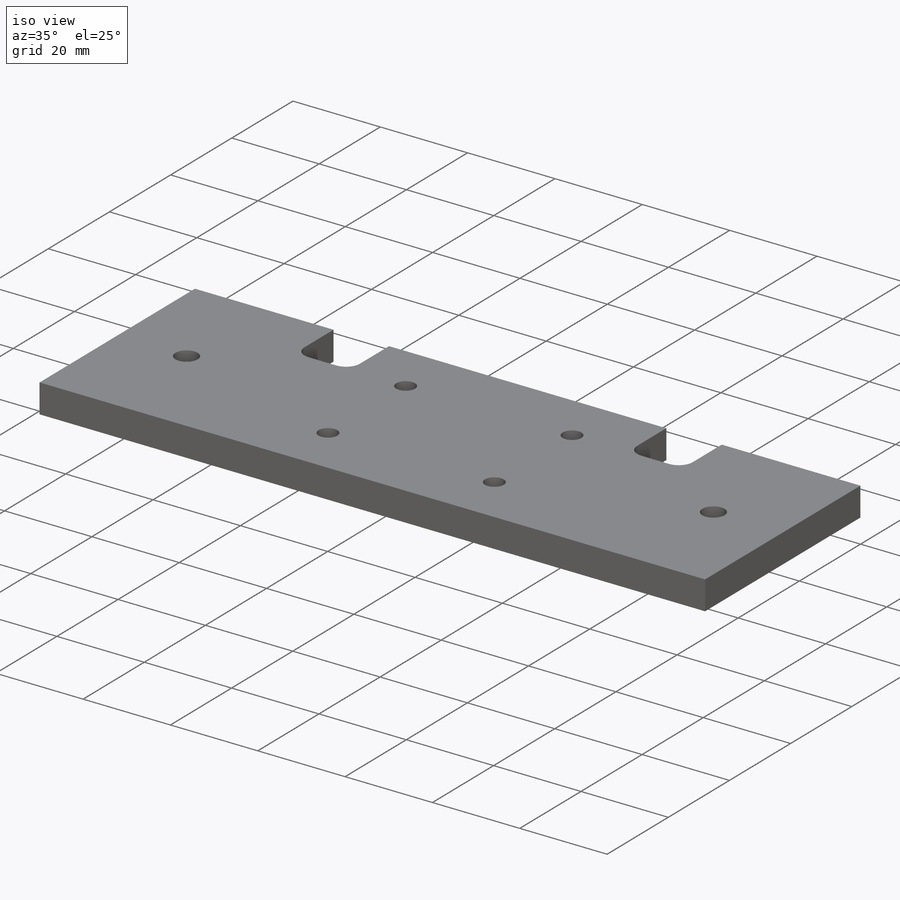
[diagram: iso view]
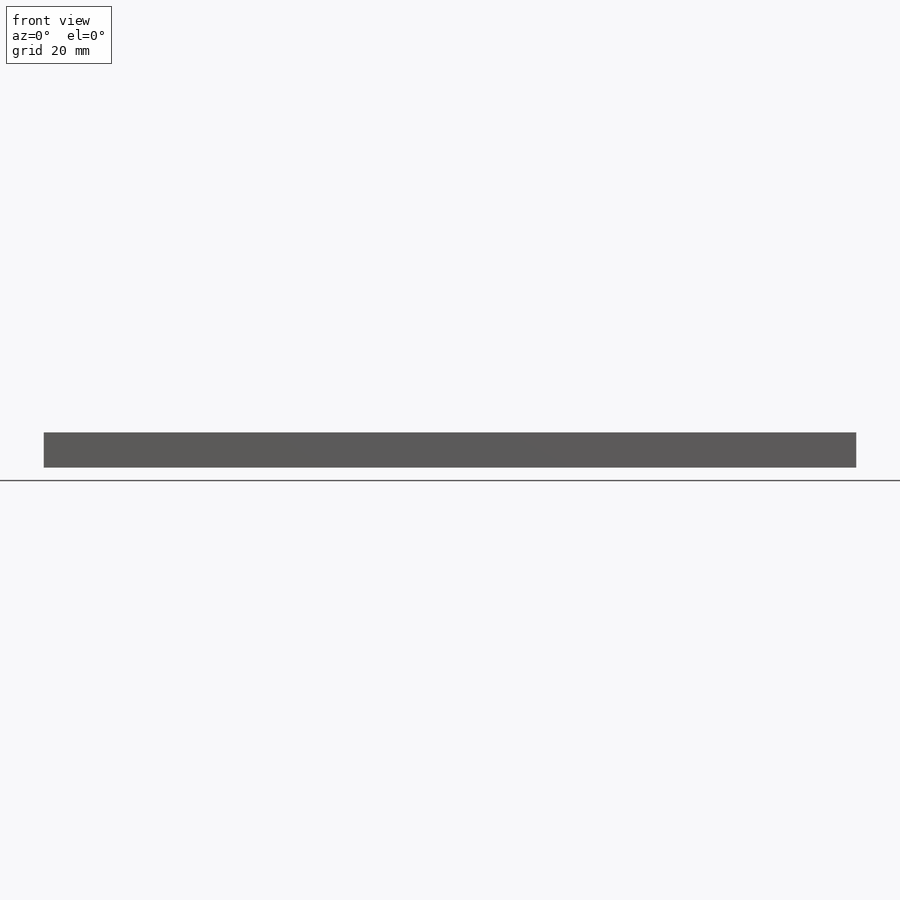
[diagram: front view]
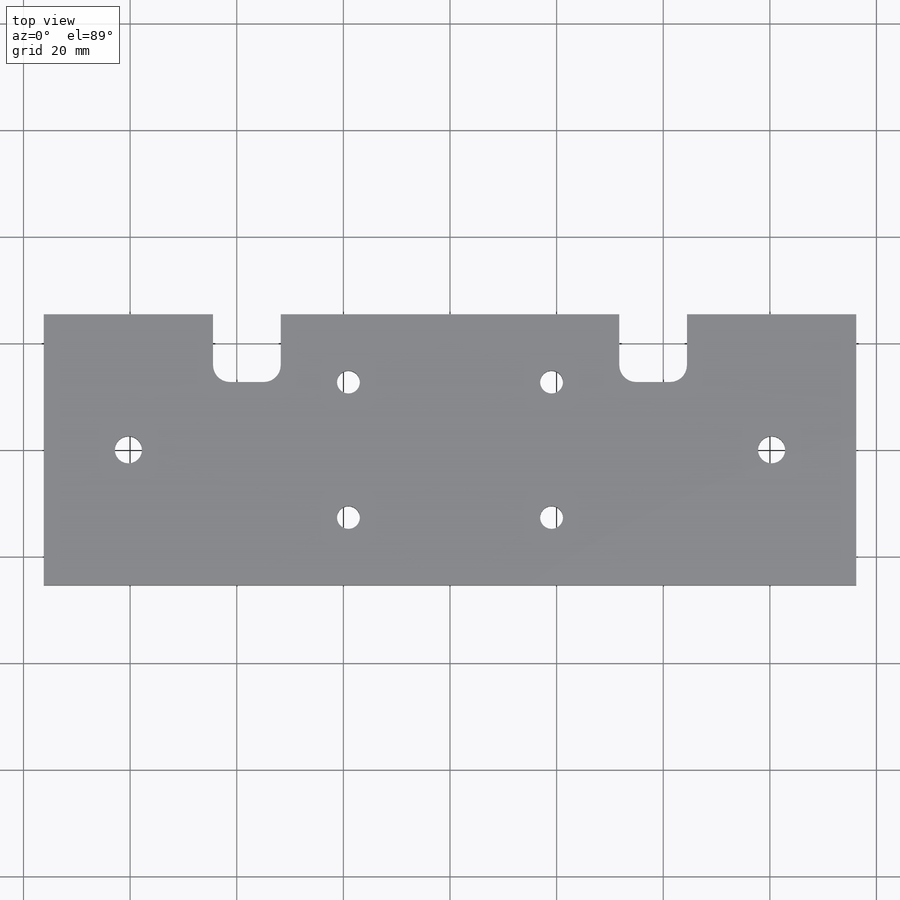
[diagram: top view]
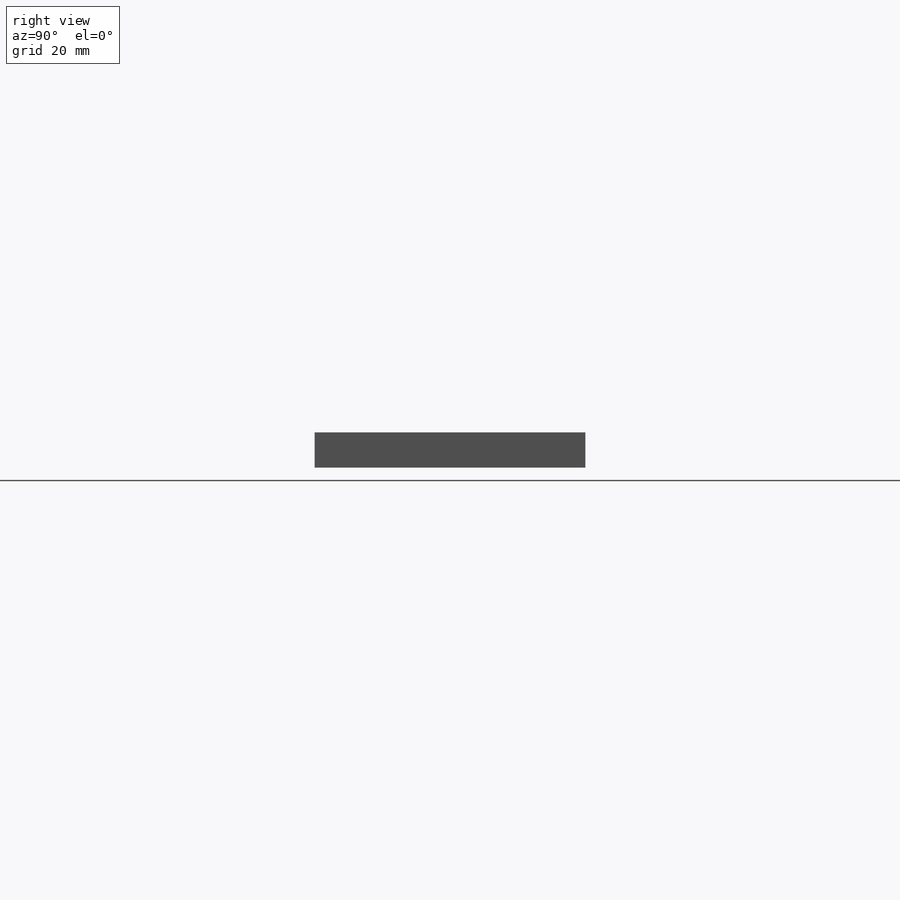
[diagram: right view]
SOLIDWORKS PART (.sldprt)
format: sldprt  version: not decoded by parser v0  size: 426,496 bytes
history: native  units: mm
features: sketch x6, hole x2, material x1, extrude x1, cut_extrude x1, mirror x1 (+12 scaffold rows collapsed)
feature tree (24):
  scaffold x12  (default folders/planes/origin — collapsed)
  material  "Acrylic (BLUE)"
  sketch  "Sketch1"  dims[D1=152.4mm D2=50.8mm]
  extrude  "Boss-Extrude1"  Depth=6.604mm
  sketch  "Sketch2"  dims[D4=3.175mm D1=12.7mm D2=12.7mm D3=31.75mm]
  cut_extrude  "Cut-Extrude1"  [1 undecoded]
  mirror  "Mirror1"
  hole  "1/4-20 Tapped Hole1"  Diameter=5.1054mm Depth=16.51mm
  sketch  "Sketch4"  dims[D1=60.325mm]
  sketch  "Sketch3"  dims[hole-wizard template sketch: 50 standard entries collapsed; hole parameters above]
  hole  "#8 Clearance Hole1"  Diameter=4.3053mm Depth=7.62mm
  sketch  "Sketch6"  dims[D1=12.7mm D2=19.05mm D3=19.05mm]
  sketch  "Sketch5"  dims[hole-wizard template sketch: 47 standard entries collapsed; hole parameters kept: c15.Hole Depth=7.62mm c15.D3=~14.816244mm c15.Drill Angle=118.0deg c15.D1=0.0508mm]
decode coverage: 9 of 11 modeling features carry decoded parameters
note: ~ marks probable driven/reference dimensions
note: 1 parameter value undecoded
note: suppression state not decoded; provenance and decode notes live in map.json
